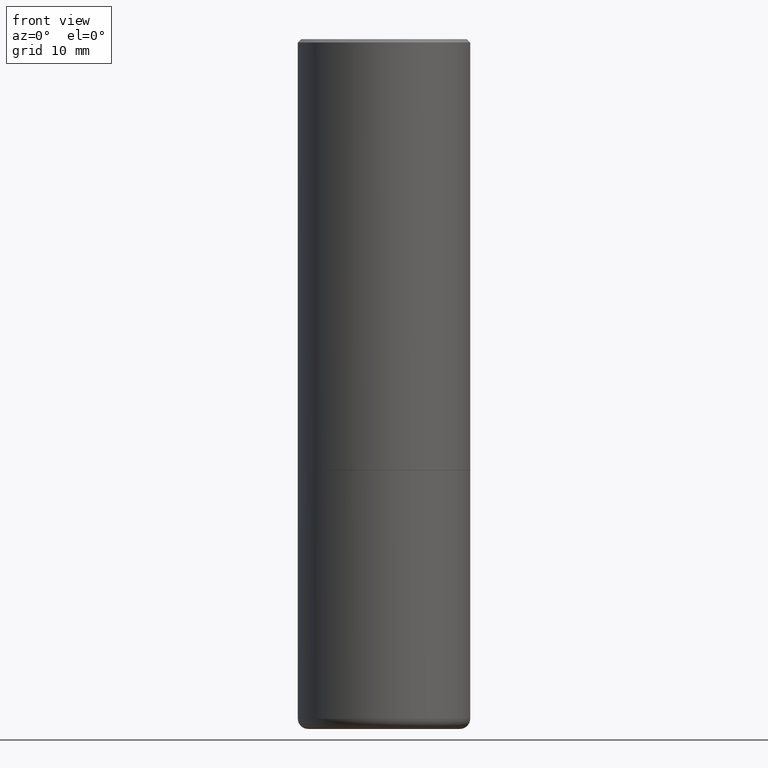
[diagram: clean part render]
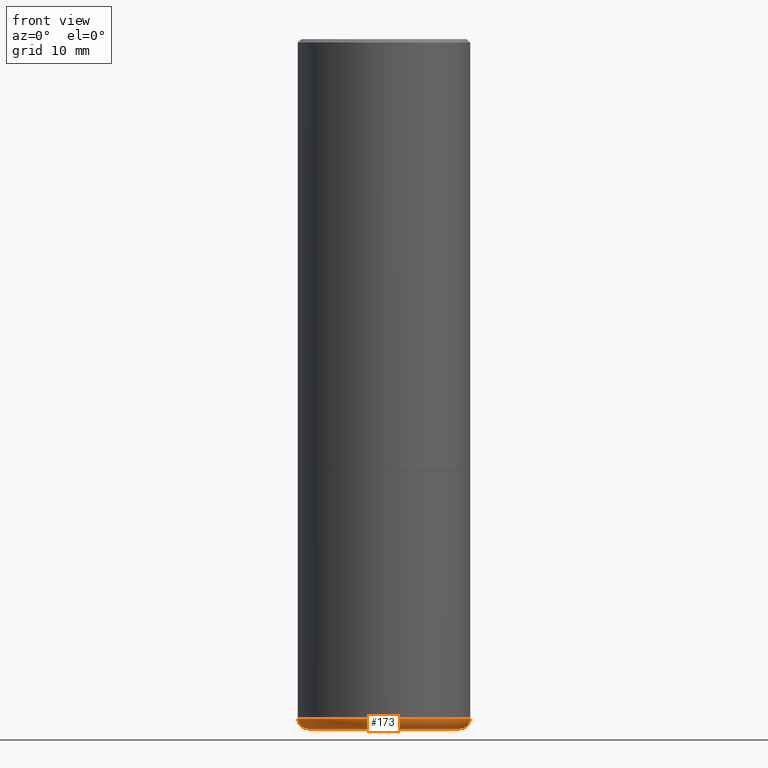
[diagram: same view with one face highlighted and labeled with its STEP entity id]
A machine part, front view. The second image highlights one B-rep face of the part: STEP entity #173.
In plain terms, the highlighted toroidal blend (fillet) surface has major radius 11.176 mm and minor (blend) radius 1.524 mm.
Its self-contained STEP definition (entity closure, byte-faithful):
#33 = EDGE_CURVE ( 'NONE', #320, #119, #237, .T. ) ;
#38 = DIRECTION ( 'NONE',  ( 7.105427357601001859E-15, 1.000000000000000000, -3.491481338843145583E-15 ) ) ;
#41 = CIRCLE ( 'NONE', #128, 0.4389528556137634596 ) ;
#43 = ORIENTED_EDGE ( 'NONE', *, *, #259, .T. ) ;
#45 = CARTESIAN_POINT ( 'NONE',  ( -0.4400000000000000022, -1.063004843769755357E-14, -3.939999999999999947 ) ) ;
#48 = CIRCLE ( 'NONE', #245, 0.4999999999999997780 ) ;
#51 = EDGE_LOOP ( 'NONE', ( #301, #43, #220, #204 ) ) ;
#55 = DIRECTION ( 'NONE',  ( 1.000000000000000000, -6.982962677686262766E-15, 0.000000000000000000 ) ) ;
#63 = DIRECTION ( 'NONE',  ( -2.445468806185136597E-29, 3.491481338843145583E-15, 1.000000000000000000 ) ) ;
#65 = CARTESIAN_POINT ( 'NONE',  ( 9.635147096369438236E-29, -1.375643647504199401E-14, -3.939999999999999947 ) ) ;
#98 = DIRECTION ( 'NONE',  ( 1.000000000000000000, -6.982962677686265922E-15, 0.000000000000000000 ) ) ;
#108 = TOROIDAL_SURFACE ( 'NONE', #292, 0.4400000000000000022, 0.05999999999999975492 ) ;
#119 = VERTEX_POINT ( 'NONE', #425 ) ;
#123 = DIRECTION ( 'NONE',  ( 1.000000000000000000, -6.982962677686265922E-15, 0.000000000000000000 ) ) ;
#128 = AXIS2_PLACEMENT_3D ( 'NONE', #363, #63, #123 ) ;
#148 = FACE_OUTER_BOUND ( 'NONE', #51, .T. ) ;
#165 = DIRECTION ( 'NONE',  ( -2.445468806185136597E-29, 3.491481338843145583E-15, 1.000000000000000000 ) ) ;
#167 = EDGE_CURVE ( 'NONE', #184, #280, #230, .T. ) ;
#173 = ADVANCED_FACE ( 'NONE', ( #148 ), #108, .T. ) ;
#182 = DIRECTION ( 'NONE',  ( -6.982962677686266711E-15, -1.000000000000000000, 3.491481338843145583E-15 ) ) ;
#184 = VERTEX_POINT ( 'NONE', #210 ) ;
#192 = DIRECTION ( 'NONE',  ( 1.000000000000000000, -6.982962677686265922E-15, 4.883557194083112340E-29 ) ) ;
#198 = CARTESIAN_POINT ( 'NONE',  ( -0.4389528556137630710, -1.090070204118670657E-14, -3.999990861709382894 ) ) ;
#204 = ORIENTED_EDGE ( 'NONE', *, *, #372, .F. ) ;
#210 = CARTESIAN_POINT ( 'NONE',  ( 0.4389528556137630710, -1.697732863625574306E-14, -3.999990861709382894 ) ) ;
#220 = ORIENTED_EDGE ( 'NONE', *, *, #167, .T. ) ;
#227 = DIRECTION ( 'NONE',  ( -2.445468806185136597E-29, 3.491481338843145583E-15, 1.000000000000000000 ) ) ;
#230 = CIRCLE ( 'NONE', #441, 0.05999999999999976880 ) ;
#237 = CIRCLE ( 'NONE', #297, 0.05999999999999976880 ) ;
#245 = AXIS2_PLACEMENT_3D ( 'NONE', #65, #165, #98 ) ;
#258 = CARTESIAN_POINT ( 'NONE',  ( 0.4400000000000000022, -1.682894005322395074E-14, -3.939999999999999947 ) ) ;
#259 = EDGE_CURVE ( 'NONE', #320, #184, #41, .T. ) ;
#265 = CARTESIAN_POINT ( 'NONE',  ( 0.4999999999999997780, -1.724791781388512421E-14, -3.939999999999999947 ) ) ;
#280 = VERTEX_POINT ( 'NONE', #265 ) ;
#292 = AXIS2_PLACEMENT_3D ( 'NONE', #432, #227, #192 ) ;
#297 = AXIS2_PLACEMENT_3D ( 'NONE', #45, #38, #304 ) ;
#301 = ORIENTED_EDGE ( 'NONE', *, *, #33, .F. ) ;
#304 = DIRECTION ( 'NONE',  ( -1.000000000000000000, 7.105427357600985293E-15, 0.000000000000000000 ) ) ;
#320 = VERTEX_POINT ( 'NONE', #198 ) ;
#363 = CARTESIAN_POINT ( 'NONE',  ( 9.781852877335900786E-29, -1.396589344920142388E-14, -3.999990861709382894 ) ) ;
#372 = EDGE_CURVE ( 'NONE', #119, #280, #48, .T. ) ;
#425 = CARTESIAN_POINT ( 'NONE',  ( -0.4999999999999997780, -1.020372279624149466E-14, -3.939999999999999947 ) ) ;
#432 = CARTESIAN_POINT ( 'NONE',  ( 9.635147096369438236E-29, -1.375643647504199401E-14, -3.939999999999999947 ) ) ;
#441 = AXIS2_PLACEMENT_3D ( 'NONE', #258, #182, #55 ) ;